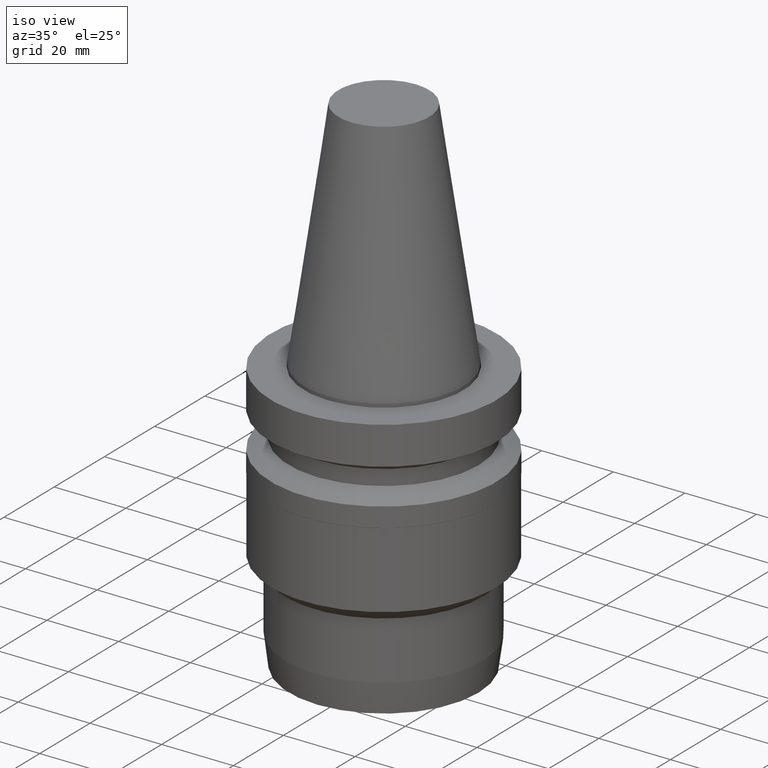
[diagram: clean part render]
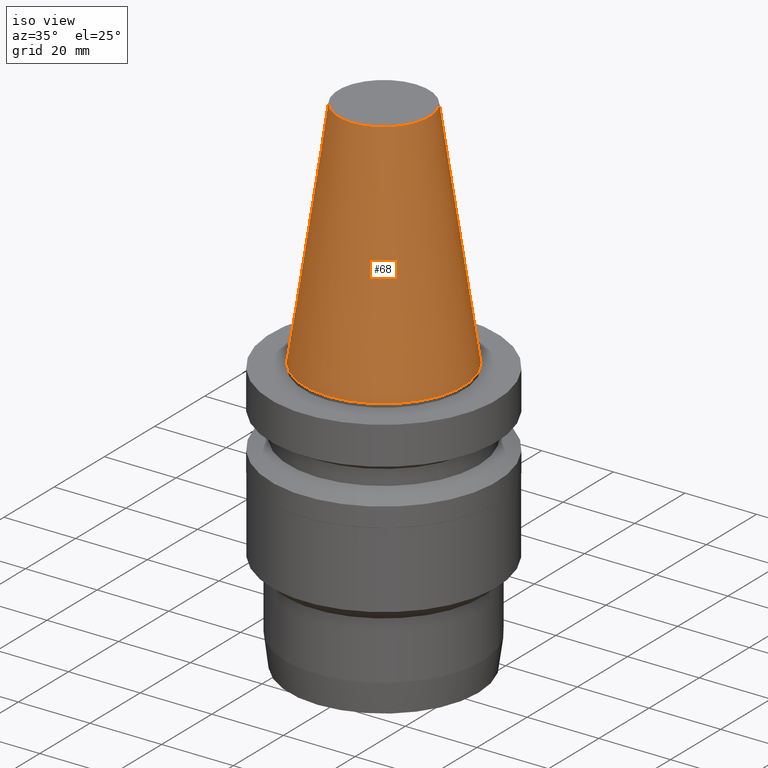
[diagram: same view with one face highlighted and labeled with its STEP entity id]
A machine part, iso view. The second image highlights one B-rep face of the part: STEP entity #68.
In plain terms, the highlighted conical surface has half-angle 8.297 deg.
Its self-contained STEP definition (entity closure, byte-faithful):
#68=ADVANCED_FACE('Unnamed[1]',(#168,#169),#170,.T.);
#110=EDGE_CURVE('Unnamed[1]',#233,#233,#234,.T.);
#112=EDGE_CURVE('Unnamed[1]',#236,#236,#237,.T.);
#168=FACE_BOUND('',#298,.T.);
#169=FACE_BOUND('',#299,.T.);
#170=CONICAL_SURFACE('',#300,17.4562500000001,0.144812498238936);
#233=VERTEX_POINT('',#379);
#234=CIRCLE('',#380,12.6875000000001);
#236=VERTEX_POINT('',#383);
#237=CIRCLE('',#384,22.225);
#298=EDGE_LOOP('',(#442));
#299=EDGE_LOOP('',(#443));
#300=AXIS2_PLACEMENT_3D('',#444,#445,#446);
#379=CARTESIAN_POINT('',(-4.00459503321185E-015,12.6875000000002,65.4000000000001));
#380=AXIS2_PLACEMENT_3D('',#513,#514,#515);
#383=CARTESIAN_POINT('',(1.71319921032766E-029,22.2250000000001,-2.8153873565375E-013));
#384=AXIS2_PLACEMENT_3D('',#516,#517,#518);
#442=ORIENTED_EDGE('',*,*,#112,.F.);
#443=ORIENTED_EDGE('',*,*,#110,.T.);
#444=CARTESIAN_POINT('',(-2.00229751660592E-015,5.48274399452081E-014,32.6999999999999));
#445=DIRECTION('',(6.12323399573677E-017,-6.62934875621774E-016,-1.0));
#446=DIRECTION('',(3.57659009428939E-032,1.0,-6.62934875621773E-016));
#513=CARTESIAN_POINT('',(-4.00459503321185E-015,7.65054103780397E-014,65.4000000000001));
#514=DIRECTION('',(6.12323399573677E-017,-6.62934875621744E-016,-1.0));
#515=DIRECTION('',(3.57659009428965E-032,1.0,-6.62934875621744E-016));
#516=CARTESIAN_POINT('',(1.65331138531142E-029,3.31494695123765E-014,-2.70006239588838E-013));
#517=DIRECTION('',(6.12323399573676E-017,-6.62934875621754E-016,-1.0));
#518=DIRECTION('',(3.57659009428984E-032,1.0,-6.62934875621754E-016));